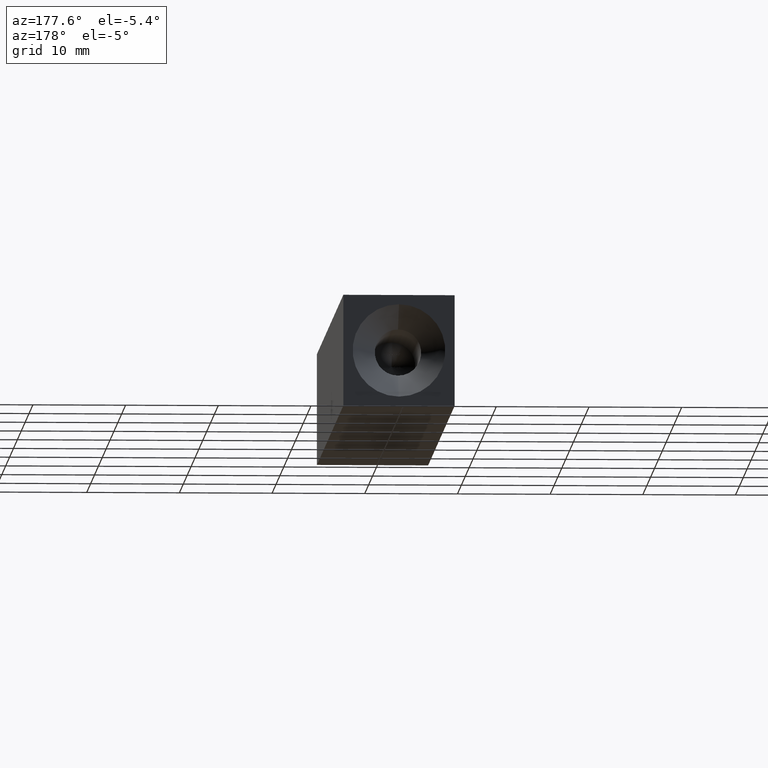
[diagram: clean part render]
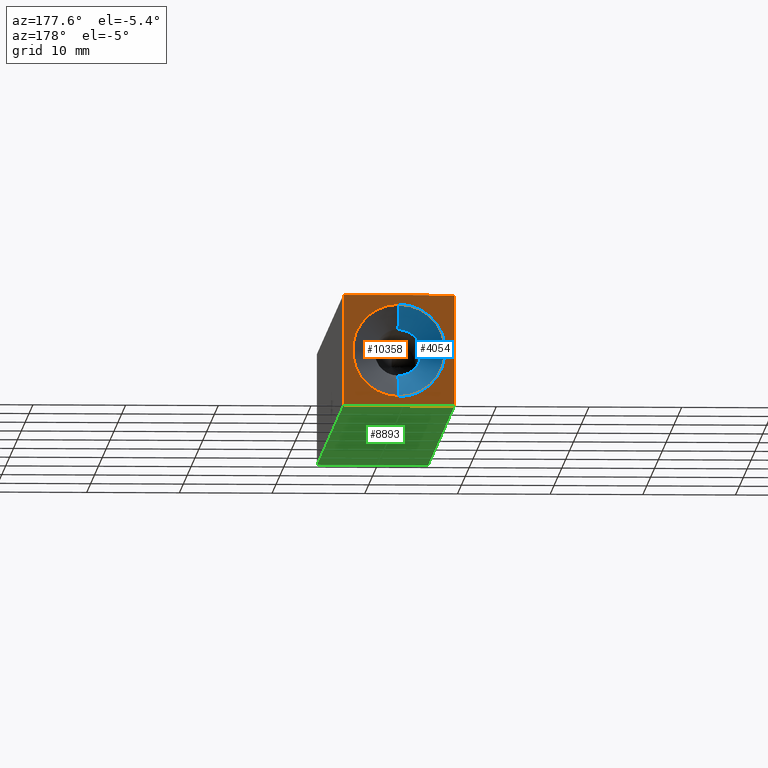
[diagram: same view with three faces highlighted in distinct colors, each labeled with its STEP entity id]
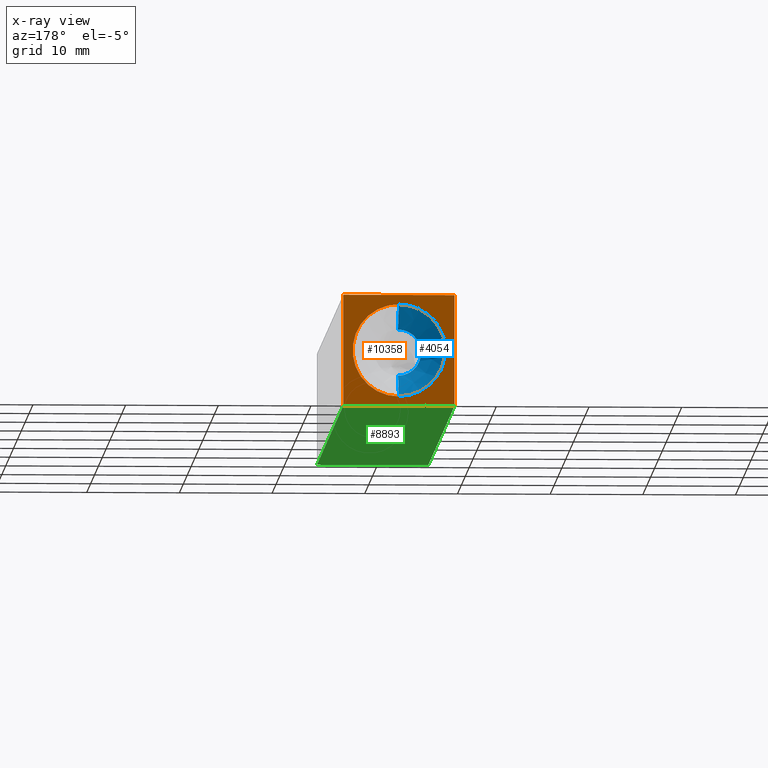
[diagram: x-ray of the same camera — body ghosted, the three highlighted faces saturated]
A machine part, auxiliary view with three faces highlighted in distinct colors.
The next image is the same camera in x-ray (body ghosted, the three faces saturated) — at least one of them is partly hidden behind the body in this view.
Their STEP definitions:

[orange] entity #10358 — the highlighted planar face has unit normal (-0, 1, 0).
#304 = CIRCLE ( 'NONE', #5263, 5.000000000000000000 ) ;
#331 = PLANE ( 'NONE',  #9832 ) ;
#333 = VERTEX_POINT ( 'NONE', #7523 ) ;
#489 = ORIENTED_EDGE ( 'NONE', *, *, #9712, .F. ) ;
#747 = EDGE_LOOP ( 'NONE', ( #11158, #489 ) ) ;
#763 = VERTEX_POINT ( 'NONE', #1407 ) ;
#828 = VERTEX_POINT ( 'NONE', #6601 ) ;
#853 = CARTESIAN_POINT ( 'NONE',  ( 5.999999999999988500, 68.00000000000000000, -6.000000000000000900 ) ) ;
#924 = LINE ( 'NONE', #3715, #9301 ) ;
#1334 = CARTESIAN_POINT ( 'NONE',  ( 5.999999999999988500, 68.00000000000000000, -6.000000000000000900 ) ) ;
#1385 = CARTESIAN_POINT ( 'NONE',  ( -8.327598234202001100E-015, 68.00000000000000000, 1.641654681943803200E-065 ) ) ;
#1407 = CARTESIAN_POINT ( 'NONE',  ( -6.000000000000009800, 68.00000000000000000, 5.999999999999999100 ) ) ;
#1674 = EDGE_LOOP ( 'NONE', ( #6786, #7574, #10872, #11727 ) ) ;
#3264 = EDGE_CURVE ( 'NONE', #763, #4607, #6753, .T. ) ;
#3479 = DIRECTION ( 'NONE',  ( 0.0000000000000000000, 0.0000000000000000000, 1.000000000000000000 ) ) ;
#3521 = DIRECTION ( 'NONE',  ( -0.0000000000000000000, 1.000000000000000000, 1.654113398946095800E-033 ) ) ;
#3715 = CARTESIAN_POINT ( 'NONE',  ( -6.000000000000011500, 68.00000000000000000, -6.000000000000000900 ) ) ;
#4607 = VERTEX_POINT ( 'NONE', #9606 ) ;
#5050 = DIRECTION ( 'NONE',  ( 0.0000000000000000000, 0.0000000000000000000, 1.000000000000000000 ) ) ;
#5109 = CIRCLE ( 'NONE', #7332, 5.000000000000000000 ) ;
#5183 = CARTESIAN_POINT ( 'NONE',  ( -8.327598234202001100E-015, 68.00000000000000000, 1.124797111283345100E-031 ) ) ;
#5212 = FACE_OUTER_BOUND ( 'NONE', #1674, .T. ) ;
#5263 = AXIS2_PLACEMENT_3D ( 'NONE', #8618, #3521, #3479 ) ;
#6434 = VECTOR ( 'NONE', #12086, 1000.000000000000000 ) ;
#6488 = DIRECTION ( 'NONE',  ( -1.445602896647339200E-016, -1.604941620322696500E-032, -1.000000000000000000 ) ) ;
#6531 = DIRECTION ( 'NONE',  ( -1.224646799147353200E-016, 1.000000000000000000, 1.654113398946095800E-033 ) ) ;
#6573 = DIRECTION ( 'NONE',  ( -1.000000000000000000, -1.224646799147353200E-016, -0.0000000000000000000 ) ) ;
#6601 = CARTESIAN_POINT ( 'NONE',  ( -8.327598234202001100E-015, 68.00000000000000000, 5.000000000000000000 ) ) ;
#6753 = LINE ( 'NONE', #10014, #6434 ) ;
#6786 = ORIENTED_EDGE ( 'NONE', *, *, #10098, .T. ) ;
#6906 = VECTOR ( 'NONE', #6488, 1000.000000000000000 ) ;
#7332 = AXIS2_PLACEMENT_3D ( 'NONE', #5183, #11204, #5050 ) ;
#7368 = DIRECTION ( 'NONE',  ( -1.000000000000000000, -1.224646799147353200E-016, 0.0000000000000000000 ) ) ;
#7523 = CARTESIAN_POINT ( 'NONE',  ( -6.000000000000011500, 68.00000000000000000, -6.000000000000000900 ) ) ;
#7574 = ORIENTED_EDGE ( 'NONE', *, *, #9702, .T. ) ;
#7660 = VERTEX_POINT ( 'NONE', #853 ) ;
#7710 = LINE ( 'NONE', #9517, #11042 ) ;
#8618 = CARTESIAN_POINT ( 'NONE',  ( -8.327598234202001100E-015, 68.00000000000000000, 1.124797111283345100E-031 ) ) ;
#8637 = EDGE_CURVE ( 'NONE', #828, #10887, #5109, .T. ) ;
#8660 = FACE_BOUND ( 'NONE', #747, .T. ) ;
#9301 = VECTOR ( 'NONE', #10799, 1000.000000000000000 ) ;
#9517 = CARTESIAN_POINT ( 'NONE',  ( -6.000000000000011500, 68.00000000000000000, -6.000000000000000900 ) ) ;
#9606 = CARTESIAN_POINT ( 'NONE',  ( 5.999999999999990200, 68.00000000000000000, 5.999999999999999100 ) ) ;
#9702 = EDGE_CURVE ( 'NONE', #7660, #333, #7710, .T. ) ;
#9712 = EDGE_CURVE ( 'NONE', #10887, #828, #304, .T. ) ;
#9832 = AXIS2_PLACEMENT_3D ( 'NONE', #1385, #6531, #7368 ) ;
#10014 = CARTESIAN_POINT ( 'NONE',  ( -6.000000000000009800, 68.00000000000000000, 5.999999999999999100 ) ) ;
#10071 = EDGE_CURVE ( 'NONE', #333, #763, #924, .T. ) ;
#10098 = EDGE_CURVE ( 'NONE', #4607, #7660, #10576, .T. ) ;
#10358 = ADVANCED_FACE ( 'NONE', ( #8660, #5212 ), #331, .T. ) ;
#10576 = LINE ( 'NONE', #1334, #6906 ) ;
#10799 = DIRECTION ( 'NONE',  ( 1.445602896647339200E-016, 1.604941620322696500E-032, 1.000000000000000000 ) ) ;
#10872 = ORIENTED_EDGE ( 'NONE', *, *, #10071, .T. ) ;
#10887 = VERTEX_POINT ( 'NONE', #12781 ) ;
#11042 = VECTOR ( 'NONE', #6573, 1000.000000000000000 ) ;
#11158 = ORIENTED_EDGE ( 'NONE', *, *, #8637, .F. ) ;
#11204 = DIRECTION ( 'NONE',  ( -0.0000000000000000000, 1.000000000000000000, 1.654113398946095800E-033 ) ) ;
#11727 = ORIENTED_EDGE ( 'NONE', *, *, #3264, .T. ) ;
#12086 = DIRECTION ( 'NONE',  ( 1.000000000000000000, 1.224646799147353200E-016, 0.0000000000000000000 ) ) ;
#12781 = CARTESIAN_POINT ( 'NONE',  ( -7.715274834628325400E-015, 68.00000000000000000, -5.000000000000000000 ) ) ;

[blue] entity #4054 — the highlighted conical surface has half-angle 45 deg.
#253 = DIRECTION ( 'NONE',  ( 0.0000000000000000000, 0.0000000000000000000, 1.000000000000000000 ) ) ;
#258 = LINE ( 'NONE', #12046, #578 ) ;
#301 = DIRECTION ( 'NONE',  ( -0.0000000000000000000, 1.000000000000000000, 1.654113398946095800E-033 ) ) ;
#304 = CIRCLE ( 'NONE', #5263, 5.000000000000000000 ) ;
#578 = VECTOR ( 'NONE', #8038, 1000.000000000000000 ) ;
#828 = VERTEX_POINT ( 'NONE', #6601 ) ;
#1178 = CARTESIAN_POINT ( 'NONE',  ( -7.868355684521745900E-015, 65.50000000000000000, -2.499999999999997300 ) ) ;
#1777 = VERTEX_POINT ( 'NONE', #5300 ) ;
#3270 = EDGE_CURVE ( 'NONE', #1777, #828, #4085, .T. ) ;
#3479 = DIRECTION ( 'NONE',  ( 0.0000000000000000000, 0.0000000000000000000, 1.000000000000000000 ) ) ;
#3521 = DIRECTION ( 'NONE',  ( -0.0000000000000000000, 1.000000000000000000, 1.654113398946095800E-033 ) ) ;
#3758 = FACE_OUTER_BOUND ( 'NONE', #8662, .T. ) ;
#3912 = ORIENTED_EDGE ( 'NONE', *, *, #9873, .F. ) ;
#4054 = ADVANCED_FACE ( 'NONE', ( #3758 ), #11157, .F. ) ;
#4063 = VERTEX_POINT ( 'NONE', #1178 ) ;
#4085 = LINE ( 'NONE', #5806, #12601 ) ;
#4979 = EDGE_CURVE ( 'NONE', #4063, #10887, #258, .T. ) ;
#5263 = AXIS2_PLACEMENT_3D ( 'NONE', #8618, #3521, #3479 ) ;
#5300 = CARTESIAN_POINT ( 'NONE',  ( -8.327598234202001100E-015, 65.50000000000000000, 2.499999999999997300 ) ) ;
#5436 = CARTESIAN_POINT ( 'NONE',  ( -8.327598234202001100E-015, 65.50000000000000000, 1.083444276309692800E-031 ) ) ;
#5806 = CARTESIAN_POINT ( 'NONE',  ( -8.327598234202001100E-015, 68.00000000000000000, 5.000000000000000000 ) ) ;
#6601 = CARTESIAN_POINT ( 'NONE',  ( -8.327598234202001100E-015, 68.00000000000000000, 5.000000000000000000 ) ) ;
#7029 = CARTESIAN_POINT ( 'NONE',  ( -8.327598234202001100E-015, 68.00000000000000000, 1.124797111283345100E-031 ) ) ;
#8038 = DIRECTION ( 'NONE',  ( 8.659560562354934100E-017, 0.7071067811865474600, -0.7071067811865475700 ) ) ;
#8142 = ORIENTED_EDGE ( 'NONE', *, *, #3270, .F. ) ;
#8618 = CARTESIAN_POINT ( 'NONE',  ( -8.327598234202001100E-015, 68.00000000000000000, 1.124797111283345100E-031 ) ) ;
#8662 = EDGE_LOOP ( 'NONE', ( #3912, #9341, #10479, #8142 ) ) ;
#8959 = DIRECTION ( 'NONE',  ( -0.0000000000000000000, 1.000000000000000000, 1.654113398946095800E-033 ) ) ;
#9341 = ORIENTED_EDGE ( 'NONE', *, *, #4979, .T. ) ;
#9573 = AXIS2_PLACEMENT_3D ( 'NONE', #5436, #301, #253 ) ;
#9712 = EDGE_CURVE ( 'NONE', #10887, #828, #304, .T. ) ;
#9873 = EDGE_CURVE ( 'NONE', #4063, #1777, #12771, .T. ) ;
#10052 = DIRECTION ( 'NONE',  ( 0.0000000000000000000, 0.7071067811865474600, 0.7071067811865475700 ) ) ;
#10130 = AXIS2_PLACEMENT_3D ( 'NONE', #7029, #8959, #12234 ) ;
#10479 = ORIENTED_EDGE ( 'NONE', *, *, #9712, .T. ) ;
#10887 = VERTEX_POINT ( 'NONE', #12781 ) ;
#11157 = CONICAL_SURFACE ( 'NONE', #10130, 5.000000000000000000, 0.7853981633974483900 ) ;
#12046 = CARTESIAN_POINT ( 'NONE',  ( -7.715274834628325400E-015, 68.00000000000000000, -5.000000000000000000 ) ) ;
#12234 = DIRECTION ( 'NONE',  ( 0.0000000000000000000, 0.0000000000000000000, 1.000000000000000000 ) ) ;
#12601 = VECTOR ( 'NONE', #10052, 1000.000000000000000 ) ;
#12771 = CIRCLE ( 'NONE', #9573, 2.499999999999997300 ) ;
#12781 = CARTESIAN_POINT ( 'NONE',  ( -7.715274834628325400E-015, 68.00000000000000000, -5.000000000000000000 ) ) ;

[green] entity #8893 — the highlighted planar face has unit normal (0, -0, 1).
#280 = VERTEX_POINT ( 'NONE', #10686 ) ;
#333 = VERTEX_POINT ( 'NONE', #7523 ) ;
#384 = EDGE_CURVE ( 'NONE', #5508, #280, #404, .T. ) ;
#404 = LINE ( 'NONE', #7234, #4195 ) ;
#853 = CARTESIAN_POINT ( 'NONE',  ( 5.999999999999988500, 68.00000000000000000, -6.000000000000000900 ) ) ;
#1110 = ORIENTED_EDGE ( 'NONE', *, *, #384, .T. ) ;
#1205 = DIRECTION ( 'NONE',  ( -1.000000000000000000, -1.224646799147353200E-016, -0.0000000000000000000 ) ) ;
#1994 = VECTOR ( 'NONE', #11448, 1000.000000000000000 ) ;
#2137 = DIRECTION ( 'NONE',  ( 1.000000000000000000, 0.0000000000000000000, -0.0000000000000000000 ) ) ;
#4076 = CARTESIAN_POINT ( 'NONE',  ( 5.999999999999997300, 7.347880794884116800E-016, -6.000000000000000900 ) ) ;
#4116 = DIRECTION ( 'NONE',  ( 0.0000000000000000000, -0.0000000000000000000, 1.000000000000000000 ) ) ;
#4195 = VECTOR ( 'NONE', #1205, 1000.000000000000000 ) ;
#5508 = VERTEX_POINT ( 'NONE', #4076 ) ;
#5555 = CARTESIAN_POINT ( 'NONE',  ( 5.999999999999988500, 68.00000000000000000, -6.000000000000000900 ) ) ;
#5680 = EDGE_LOOP ( 'NONE', ( #1110, #6130, #8573, #7495 ) ) ;
#6130 = ORIENTED_EDGE ( 'NONE', *, *, #12398, .F. ) ;
#6441 = FACE_OUTER_BOUND ( 'NONE', #5680, .T. ) ;
#6573 = DIRECTION ( 'NONE',  ( -1.000000000000000000, -1.224646799147353200E-016, -0.0000000000000000000 ) ) ;
#6837 = AXIS2_PLACEMENT_3D ( 'NONE', #8114, #4116, #2137 ) ;
#7234 = CARTESIAN_POINT ( 'NONE',  ( -6.000000000000002700, -7.347880794884122700E-016, -6.000000000000000900 ) ) ;
#7495 = ORIENTED_EDGE ( 'NONE', *, *, #10375, .T. ) ;
#7500 = DIRECTION ( 'NONE',  ( 1.224646799147353200E-016, -1.000000000000000000, -0.0000000000000000000 ) ) ;
#7523 = CARTESIAN_POINT ( 'NONE',  ( -6.000000000000011500, 68.00000000000000000, -6.000000000000000900 ) ) ;
#7660 = VERTEX_POINT ( 'NONE', #853 ) ;
#7710 = LINE ( 'NONE', #9517, #11042 ) ;
#8114 = CARTESIAN_POINT ( 'NONE',  ( -6.000000000000011500, 68.00000000000000000, -6.000000000000000900 ) ) ;
#8273 = CARTESIAN_POINT ( 'NONE',  ( -6.000000000000011500, 68.00000000000000000, -6.000000000000000900 ) ) ;
#8573 = ORIENTED_EDGE ( 'NONE', *, *, #9702, .F. ) ;
#8893 = ADVANCED_FACE ( 'NONE', ( #6441 ), #9275, .F. ) ;
#9275 = PLANE ( 'NONE',  #6837 ) ;
#9517 = CARTESIAN_POINT ( 'NONE',  ( -6.000000000000011500, 68.00000000000000000, -6.000000000000000900 ) ) ;
#9702 = EDGE_CURVE ( 'NONE', #7660, #333, #7710, .T. ) ;
#10257 = LINE ( 'NONE', #5555, #10880 ) ;
#10375 = EDGE_CURVE ( 'NONE', #7660, #5508, #10257, .T. ) ;
#10686 = CARTESIAN_POINT ( 'NONE',  ( -6.000000000000002700, -7.347880794884122700E-016, -6.000000000000000900 ) ) ;
#10880 = VECTOR ( 'NONE', #7500, 1000.000000000000000 ) ;
#11042 = VECTOR ( 'NONE', #6573, 1000.000000000000000 ) ;
#11448 = DIRECTION ( 'NONE',  ( 1.224646799147353200E-016, -1.000000000000000000, -0.0000000000000000000 ) ) ;
#12398 = EDGE_CURVE ( 'NONE', #333, #280, #13027, .T. ) ;
#13027 = LINE ( 'NONE', #8273, #1994 ) ;